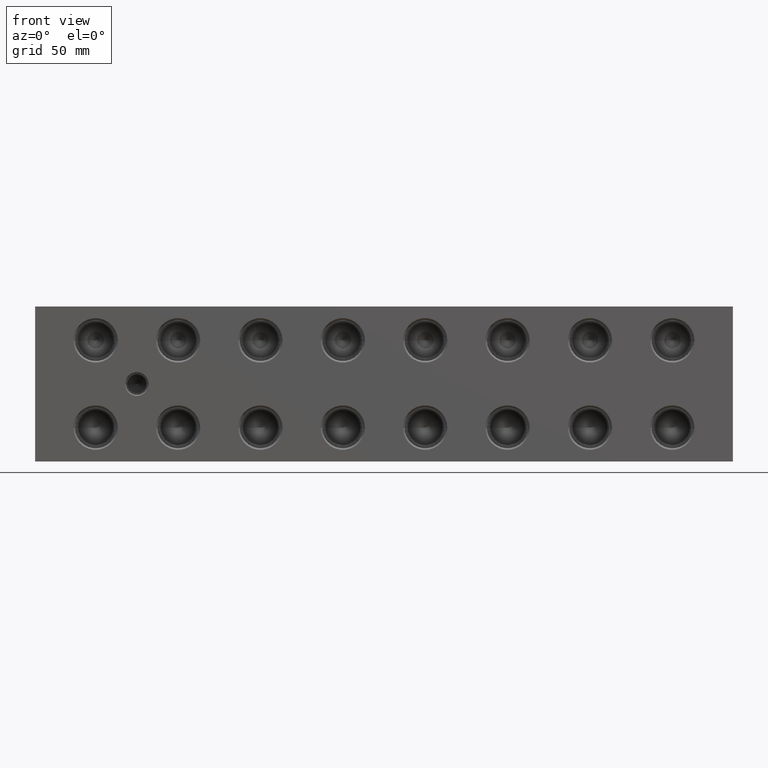
[diagram: clean part render]
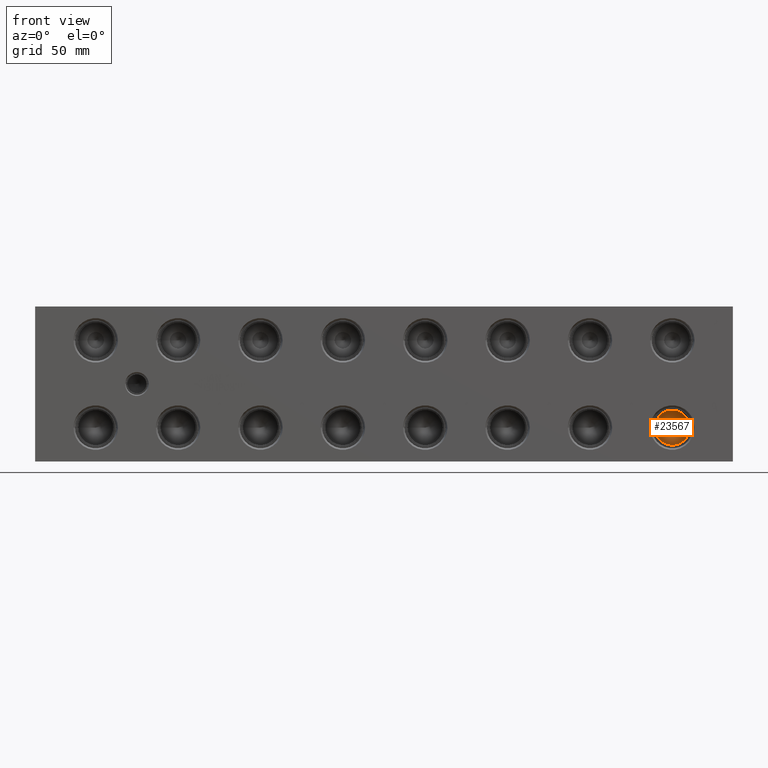
[diagram: same view with one face highlighted and labeled with its STEP entity id]
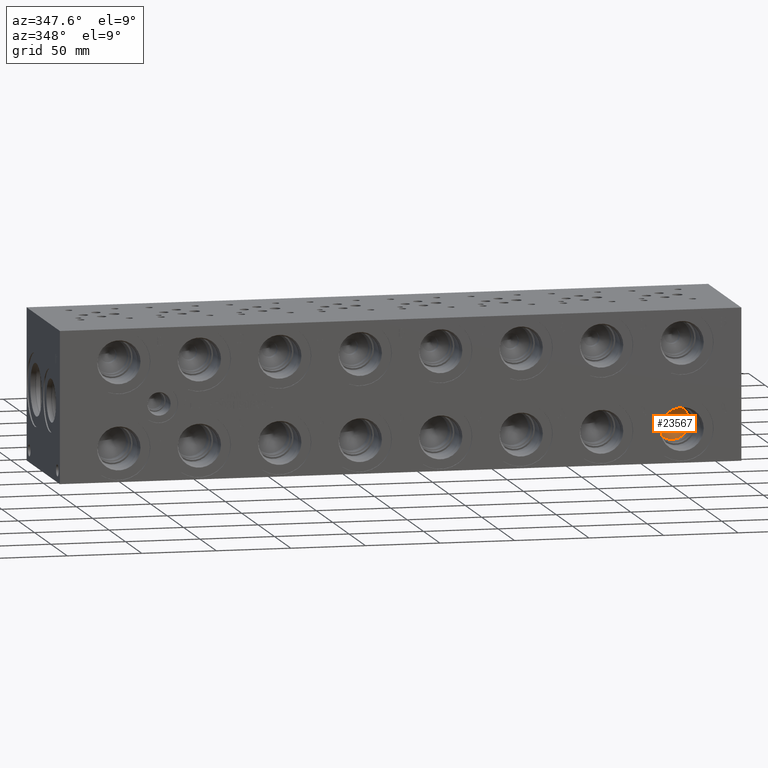
[diagram: same view with one face highlighted and labeled with its STEP entity id]
A machine part, front view. The second image highlights one B-rep face of the part: STEP entity #23567.
A second angle (auxiliary view) of the same face is appended — the face is thin or edge-on in the first view.
In plain terms, the highlighted conical surface has half-angle 60 deg.
Its self-contained STEP definition (entity closure, byte-faithful):
#85=CONICAL_SURFACE('',#24917,5.7531,1.0471975511966);
#1042=CIRCLE('',#24918,11.5062);
#1043=CIRCLE('',#24919,11.5062);
#3301=FACE_OUTER_BOUND('',#4691,.T.);
#4691=EDGE_LOOP('',(#19725,#19726,#19727,#19728));
#6795=LINE('',#40150,#8722);
#8722=VECTOR('',#29472,5.7531);
#10721=VERTEX_POINT('',#40146);
#10722=VERTEX_POINT('',#40147);
#10723=VERTEX_POINT('',#40149);
#13881=EDGE_CURVE('',#10721,#10722,#1042,.T.);
#13882=EDGE_CURVE('',#10722,#10723,#6795,.T.);
#13883=EDGE_CURVE('',#10722,#10721,#1043,.T.);
#19725=ORIENTED_EDGE('',*,*,#13881,.T.);
#19726=ORIENTED_EDGE('',*,*,#13882,.T.);
#19727=ORIENTED_EDGE('',*,*,#13882,.F.);
#19728=ORIENTED_EDGE('',*,*,#13883,.T.);
#23567=ADVANCED_FACE('',(#3301),#85,.F.);
#24917=AXIS2_PLACEMENT_3D('',#40145,#29468,#29469);
#24918=AXIS2_PLACEMENT_3D('',#40148,#29470,#29471);
#24919=AXIS2_PLACEMENT_3D('',#40151,#29473,#29474);
#29468=DIRECTION('center_axis',(0.,-1.,0.));
#29469=DIRECTION('ref_axis',(1.,0.,0.));
#29470=DIRECTION('center_axis',(0.,-1.,0.));
#29471=DIRECTION('ref_axis',(1.,0.,0.));
#29472=DIRECTION('',(0.866025403784439,0.5,1.06057523872491E-16));
#29473=DIRECTION('center_axis',(0.,-1.,0.));
#29474=DIRECTION('ref_axis',(1.,0.,0.));
#40145=CARTESIAN_POINT('Origin',(417.4998,34.1787738336748,22.225));
#40146=CARTESIAN_POINT('',(429.006,30.85722,22.225));
#40147=CARTESIAN_POINT('',(405.9936,30.85722,22.225));
#40148=CARTESIAN_POINT('Origin',(417.4998,30.85722,22.225));
#40149=CARTESIAN_POINT('',(417.4998,37.5003276673497,22.225));
#40150=CARTESIAN_POINT('',(411.7467,34.1787738336748,22.225));
#40151=CARTESIAN_POINT('Origin',(417.4998,30.85722,22.225));